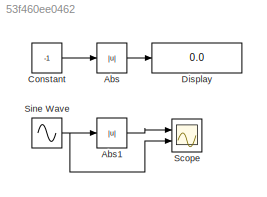
MODEL slx_53f460ee0462
KIND model
CONFIG AbsTol = auto
CONFIG EnableMultiTasking = off
CONFIG FixedStep = auto
CONFIG MaxStep = auto
CONFIG MinStep = auto
CONFIG RelTol = 1e-3
CONFIG SampleTimeConstraint = Unconstrained
CONFIG SolverName = VariableStepAuto
CONFIG StartTime = 0.0
CONFIG StopTime = 10.0
BLOCK [Abs] Abs
  SaturateOnIntegerOverflow = off
BLOCK [Abs] Abs1
  SaturateOnIntegerOverflow = off
BLOCK [Constant] Constant
  Value = -1
BLOCK [Display] Display
  Decimation = 1
  Ports = [1]
BLOCK [Scope] Scope
  Floating = off
  NumInputPorts = 2
  Ports = [2]
  ScopeSpecificationString = Simulink.scopes.TimeScopeBlockCfg('CurrentConfiguration', extmgr.ConfigurationSet(extmgr.Configuration('Core','General UI',true),extmgr.Configuration('Core','Source UI',true),extmgr.Configuration('Sources','WiredSimulink',true),extmgr.Configuration('Visuals','Time Domain',true,'SerializedDisplays',{struct('MinYLimReal','-1.24563','MaxYLimReal','1.24904','YLabelReal','','MinYLimMag','0.00000','MaxY...<+2099ch>
BLOCK [Sin] Sine Wave
  Ports = [0, 1]
  SampleTime = 0
LINE Abs1:1 -> Scope:1
LINE Abs:1 -> Display:1
LINE Constant:1 -> Abs:1
NET Sine Wave:1 -> Abs1:1, Scope:2
note: NET lines group one-source signal fan-out (src -> all destinations, sorted); 1:1 wires keep LINE
